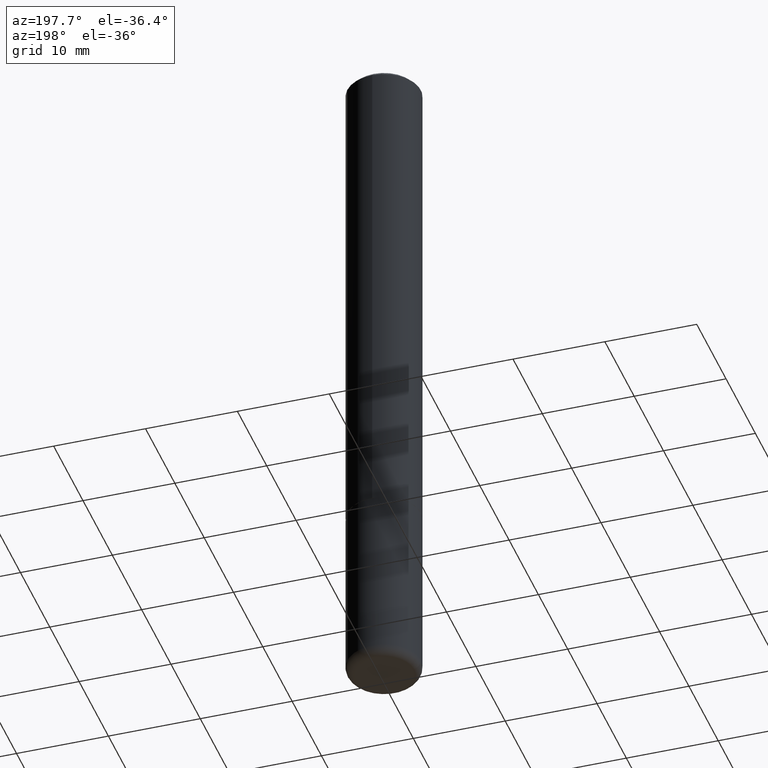
[diagram: clean part render]
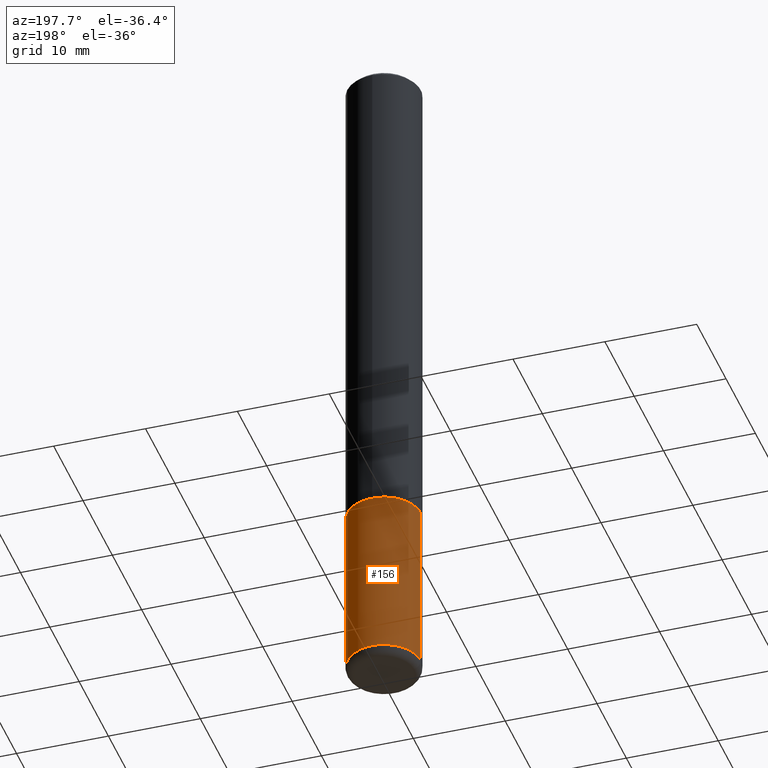
[diagram: same view with one face highlighted and labeled with its STEP entity id]
A machine part, auxiliary view. The second image highlights one B-rep face of the part: STEP entity #156.
In plain terms, the highlighted cylindrical surface (partial cylindrical patch) has radius 4.0005 mm, axis along (-0, 0, 1).
Its self-contained STEP definition (entity closure, byte-faithful):
#1 = EDGE_LOOP ( 'NONE', ( #62, #51, #418, #318 ) ) ;
#24 = DIRECTION ( 'NONE',  ( -2.445468806185136597E-29, 3.491481338843145583E-15, 1.000000000000000000 ) ) ;
#28 = DIRECTION ( 'NONE',  ( -2.445468806185136877E-29, 3.491481338843145188E-15, 1.000000000000000000 ) ) ;
#30 = CIRCLE ( 'NONE', #349, 0.1575000000000000011 ) ;
#40 = VECTOR ( 'NONE', #100, 39.37007874015748143 ) ;
#46 = CARTESIAN_POINT ( 'NONE',  ( 0.000000000000000000, 0.000000000000000000, 0.000000000000000000 ) ) ;
#51 = ORIENTED_EDGE ( 'NONE', *, *, #381, .T. ) ;
#62 = ORIENTED_EDGE ( 'NONE', *, *, #98, .T. ) ;
#65 = VECTOR ( 'NONE', #28, 39.37007874015748143 ) ;
#68 = CARTESIAN_POINT ( 'NONE',  ( -0.1575000000000000011, -7.747162903036124976E-15, -2.165399999999999991 ) ) ;
#76 = EDGE_CURVE ( 'NONE', #386, #377, #30, .T. ) ;
#98 = EDGE_CURVE ( 'NONE', #225, #351, #223, .T. ) ;
#100 = DIRECTION ( 'NONE',  ( -2.445468806185136877E-29, 3.491481338843145188E-15, 1.000000000000000000 ) ) ;
#106 = DIRECTION ( 'NONE',  ( -2.445468806185136597E-29, 3.491481338843145583E-15, 1.000000000000000000 ) ) ;
#144 = AXIS2_PLACEMENT_3D ( 'NONE', #302, #367, #232 ) ;
#156 = ADVANCED_FACE ( 'NONE', ( #207 ), #241, .T. ) ;
#169 = DIRECTION ( 'NONE',  ( 1.000000000000000000, -6.982962677686268288E-15, 0.000000000000000000 ) ) ;
#179 = DIRECTION ( 'NONE',  ( 1.000000000000000000, -6.982962677686265922E-15, 4.876176775795935232E-29 ) ) ;
#190 = CARTESIAN_POINT ( 'NONE',  ( 0.1575000000000000011, -1.099816621735586889E-15, 7.679978421878598033E-30 ) ) ;
#201 = CARTESIAN_POINT ( 'NONE',  ( 0.1575000000000000011, -8.660270312866534114E-15, -2.165399999999999991 ) ) ;
#207 = FACE_OUTER_BOUND ( 'NONE', #1, .T. ) ;
#223 = CIRCLE ( 'NONE', #144, 0.1575000000000000011 ) ;
#225 = VERTEX_POINT ( 'NONE', #293 ) ;
#232 = DIRECTION ( 'NONE',  ( 1.000000000000000000, -6.982962677686261977E-15, 0.000000000000000000 ) ) ;
#241 = CYLINDRICAL_SURFACE ( 'NONE', #312, 0.1575000000000000011 ) ;
#270 = CARTESIAN_POINT ( 'NONE',  ( -0.1575000000000000011, 1.119104808822157801E-15, -7.747322767151475583E-30 ) ) ;
#280 = EDGE_CURVE ( 'NONE', #225, #386, #323, .T. ) ;
#293 = CARTESIAN_POINT ( 'NONE',  ( 0.1575000000000000289, -1.127189835432120758E-14, -2.913399999999999768 ) ) ;
#302 = CARTESIAN_POINT ( 'NONE',  ( 7.124628819939776708E-29, -1.017208173258561931E-14, -2.913399999999999768 ) ) ;
#312 = AXIS2_PLACEMENT_3D ( 'NONE', #46, #24, #179 ) ;
#318 = ORIENTED_EDGE ( 'NONE', *, *, #280, .F. ) ;
#323 = LINE ( 'NONE', #190, #65 ) ;
#339 = CARTESIAN_POINT ( 'NONE',  ( 5.295418152913294345E-29, -7.560453691130947423E-15, -2.165399999999999991 ) ) ;
#349 = AXIS2_PLACEMENT_3D ( 'NONE', #339, #106, #169 ) ;
#351 = VERTEX_POINT ( 'NONE', #379 ) ;
#367 = DIRECTION ( 'NONE',  ( -2.445468806185136597E-29, 3.491481338843145583E-15, 1.000000000000000000 ) ) ;
#377 = VERTEX_POINT ( 'NONE', #68 ) ;
#379 = CARTESIAN_POINT ( 'NONE',  ( -0.1575000000000000289, -9.052976923763463288E-15, -2.913399999999999768 ) ) ;
#381 = EDGE_CURVE ( 'NONE', #351, #377, #390, .T. ) ;
#386 = VERTEX_POINT ( 'NONE', #201 ) ;
#390 = LINE ( 'NONE', #270, #40 ) ;
#418 = ORIENTED_EDGE ( 'NONE', *, *, #76, .F. ) ;